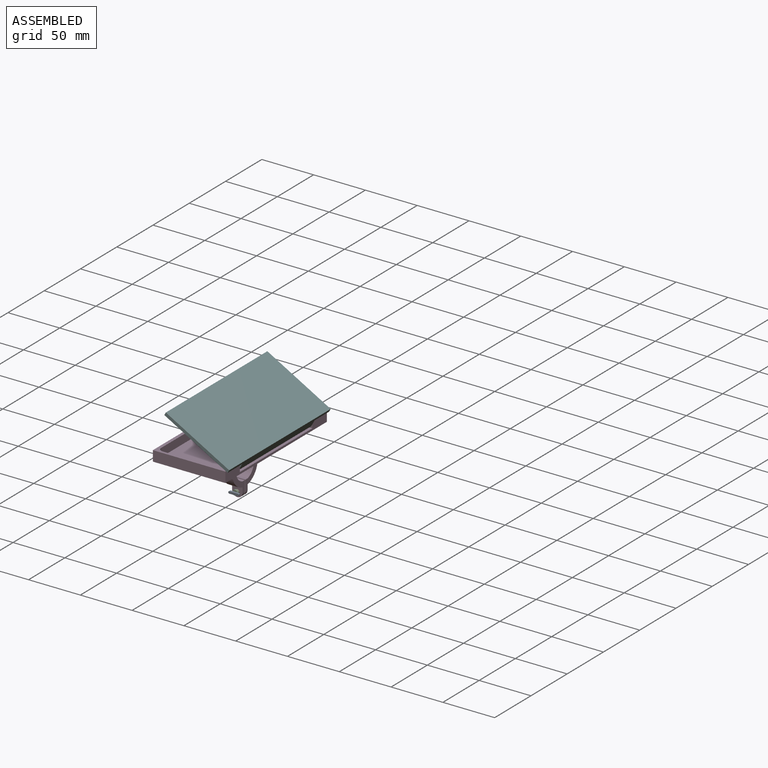
[diagram: assembled view]
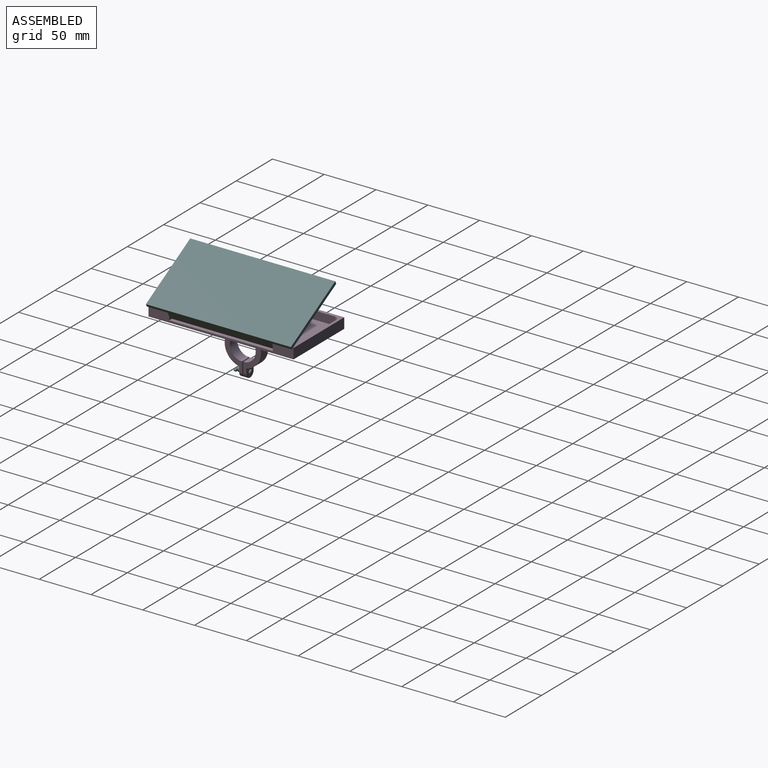
[diagram: assembled view, second angle]
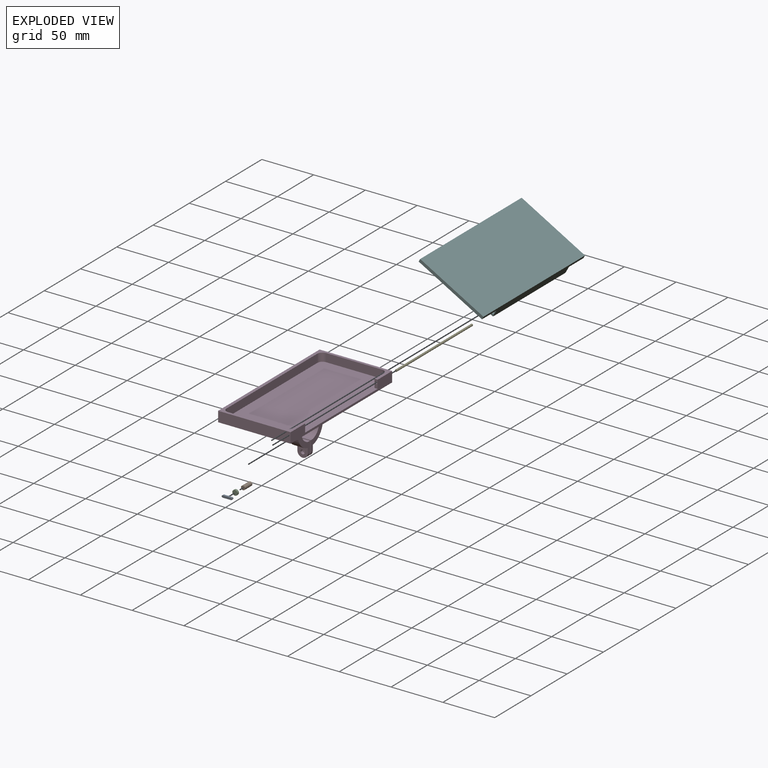
[diagram: exploded view]
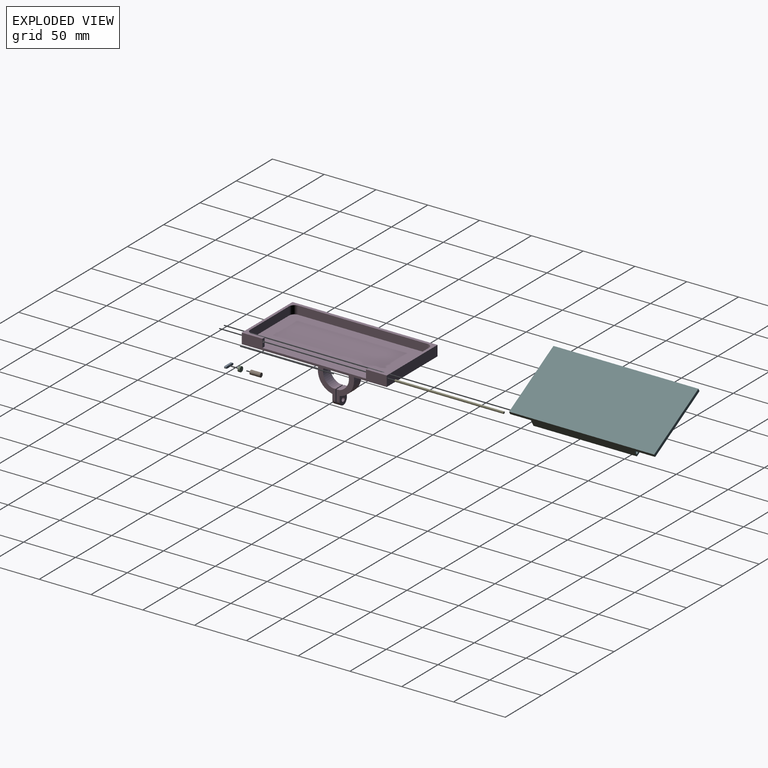
[diagram: exploded view, second angle]
ASSEMBLY  parts=6 mates=5
PART A: 6 faces, bbox 10x2x2 mm
  f0: plane 8x2mm, normal (0,0,1), area 16mm2, adj f2,f3,f4,f5
  f1: plane 8x2mm, normal (0,0,-1), area 16mm2, adj f2,f3,f4,f5
  f2: plane 10x2mm, normal (0,1,0), area 19.1mm2, adj f0,f1,f4,f5
  f3: plane 10x2mm, normal (0,-1,0), area 19.1mm2, adj f0,f1,f4,f5
  f4: cylinder r=1mm len=2mm, axis (0,-1,0), area 6.3mm2, adj f0,f1,f2,f3
  f5: cylinder r=1mm len=2mm, axis (0,-1,0), area 6.3mm2, adj f0,f1,f2,f3
PART B: 3 faces, bbox 4x10x4 mm
  f0: cylinder r=2mm len=10mm, axis (0,-1,0), area 125.7mm2, adj f1,f2
  f1: plane 4x4mm, normal (0,1,0), area 12.6mm2, adj f0
  f2: plane 4x4mm, normal (0,-1,0), area 12.6mm2, adj f0
PART C: 3 faces, bbox 5x2x5 mm
  f0: cylinder r=2.5mm len=5mm, axis (0,-1,0), area 31.4mm2, adj f1,f2
  f1: plane 5x5mm, normal (0,1,0), area 19.6mm2, adj f0
  f2: plane 5x5mm, normal (0,-1,0), area 19.6mm2, adj f0
PART D: 42 faces, bbox 70x140x57 mm
  f0: cylinder r=17.5mm len=32.15mm, axis (-1,0,0), area 419.8mm2, adj f1,f25,f27,f31
  f1: plane 37x35mm, normal (1,0,0), area 465.4mm2, adj f0,f2,f25,f26,f28,f29,f30,f31
  f2: cylinder r=12.5mm len=25mm, axis (1,0,0), area 714.4mm2, adj f1,f27,f28,f32
  f3: plane 140x70mm, normal (0,0,1), area 881.5mm2, adj f4,f5,f6,f7,f8,f10,f11,f12
  f4: plane 12.5x8mm, normal (-1,0,0), area 100mm2, adj f3,f14,f18,f19
  f5: plane 140x10mm, normal (1,0,0), area 600mm2, adj f3,f6,f8,f9,f14,f19,f20
  f6: plane 70x10mm, normal (0,1,0), area 700mm2, adj f3,f5,f7,f9
  f7: plane 140x10mm, normal (-1,0,0), area 1400mm2, adj f3,f6,f8,f9
  f8: plane 70x10mm, normal (0,-1,0), area 700mm2, adj f3,f5,f7,f9
  f9: plane 140x70mm, normal (0,0,-1), area 8600mm2, adj f5,f6,f7,f8,f21,f22,f23,f24
  f10: plane 54x8mm, normal (0,-1,0), area 432mm2, adj f3,f14,f15,f18
  f11: plane 125x8mm, normal (1,0,0), area 1000mm2, adj f3,f14,f15,f16
  f12: plane 54x8mm, normal (0,1,0), area 432mm2, adj f3,f14,f16,f17
  f13: plane 12.5x8mm, normal (-1,0,0), area 100mm2, adj f3,f14,f17,f20
  f14: plane 135x67mm, normal (0,0,1), area 8918.5mm2, adj f4,f5,f10,f11,f12,f13,f15,f16
  f15: cylinder r=5mm len=8mm, axis (0,0,1), area 62.8mm2, adj f3,f10,f11,f14
  f16: cylinder r=5mm len=8mm, axis (0,0,-1), area 62.8mm2, adj f3,f11,f12,f14
  f17: cylinder r=5mm len=8mm, axis (0,0,1), area 62.8mm2, adj f3,f12,f13,f14
  f18: cylinder r=5mm len=8mm, axis (0,0,-1), area 62.8mm2, adj f3,f4,f10,f14
  f19: plane 8x3mm, normal (0,-1,0), area 20.9mm2, adj f3,f4,f5,f14,f38
  f20: plane 8x3mm, normal (0,1,0), area 20.9mm2, adj f3,f5,f13,f14,f40
  f21: plane 30x5mm, normal (0,-1,0), area 150mm2, adj f9,f22,f24,f25
  f22: plane 40x5mm, normal (-1,0,0), area 200mm2, adj f9,f21,f23,f25
  f23: plane 30x5mm, normal (0,1,0), area 150mm2, adj f9,f22,f24,f25
  f24: plane 40x5mm, normal (1,0,0), area 200mm2, adj f9,f21,f23,f25
  f25: plane 40x30mm, normal (0,0,-1), area 1019.7mm2, adj f0,f1,f21,f22,f23,f24,f26,f27
  f26: cylinder r=17.5mm len=32.15mm, axis (-1,0,0), area 419.8mm2, adj f1,f25,f27,f30
  f27: plane 37x35mm, normal (-1,0,0), area 465.4mm2, adj f0,f2,f25,f26,f28,f29,f30,f31
  f28: plane 10x3mm, normal (0,0,1), area 30mm2, adj f1,f2,f27,f29
  f29: plane 15x10mm, normal (0,-1,0), area 126.7mm2, adj f1,f27,f28,f35,f37
  f30: plane 10x9.85mm, normal (0,1,0), area 75.2mm2, adj f1,f26,f27,f35,f37
  f31: plane 10x9.85mm, normal (0,-1,0), area 75.2mm2, adj f0,f1,f27,f34,f36
  f32: plane 10x3mm, normal (0,0,1), area 30mm2, adj f1,f2,f27,f33
  f33: plane 15x10mm, normal (0,1,0), area 126.7mm2, adj f1,f27,f32,f34,f36
  f34: cylinder r=5mm len=10mm, axis (0,-1,0), area 47.1mm2, adj f1,f27,f31,f33
  f35: cylinder r=5mm len=10mm, axis (0,-1,0), area 47.1mm2, adj f1,f27,f29,f30
  f36: cylinder r=2mm len=4mm, axis (0,-1,0), area 37.7mm2, adj f31,f33
  f37: cylinder r=2mm len=4mm, axis (0,-1,0), area 37.7mm2, adj f29,f30
  f38: cylinder r=1mm len=5mm, axis (0,-1,0), area 31.4mm2, adj f19,f39
  f39: plane 2x2mm, normal (0,-1,0), area 3.1mm2, adj f38
  f40: cylinder r=1mm len=5mm, axis (0,1,0), area 31.4mm2, adj f20,f41
  f41: plane 2x2mm, normal (0,1,0), area 3.1mm2, adj f40
PART E: 3 faces, bbox 2x105x2 mm
  f0: cylinder r=1mm len=105mm, axis (0,1,0), area 659.7mm2, adj f1,f2
  f1: plane 2x2mm, normal (0,-1,0), area 3.1mm2, adj f0
  f2: plane 2x2mm, normal (0,1,0), area 3.1mm2, adj f0
PART F: 11 faces, bbox 70x140x10 mm
  f0: plane 100x4mm, normal (0,0,-1), area 400mm2, adj f1,f2,f3,f4
  f1: plane 100x7mm, normal (-1,0,0), area 700mm2, adj f0,f3,f4,f6
  f2: plane 140x10mm, normal (1,0,0), area 1120mm2, adj f0,f3,f4,f6,f7,f8,f10
  f3: plane 7x4mm, normal (0,1,0), area 20.9mm2, adj f0,f1,f2,f5,f6
  f4: plane 7x4mm, normal (0,-1,0), area 20.9mm2, adj f0,f1,f2,f5,f6
  f5: cylinder r=1.5mm len=100mm, axis (0,1,0), area 942.5mm2, adj f3,f4
  f6: plane 140x70mm, normal (0,0,-1), area 9400mm2, adj f1,f2,f3,f4,f7,f8,f9
  f7: plane 70x3mm, normal (0,-1,0), area 210mm2, adj f2,f6,f9,f10
  f8: plane 70x3mm, normal (0,1,0), area 210mm2, adj f2,f6,f9,f10
  f9: plane 140x3mm, normal (-1,0,0), area 420mm2, adj f6,f7,f8,f10
  f10: plane 140x70mm, normal (0,0,1), area 9800mm2, adj f2,f7,f8,f9
PLACE A t=(0,69.64,0)mm
PLACE B t=(0,71.64,0)mm
PLACE C t=(0,71.64,0)mm
PLACE D t=(0,70,0)mm
PLACE E t=(0.5,70,-0.04)mm
PLACE F rot(axis=(0,1,0),29.1deg) t=(0.83,70,17.19)mm
MATE slider D.f34 <-> C.f0  axis (0,1,0) through (0,73.5,-42)mm
MATE fastened B.f0 <-> C.f0  axis (0,-1,0) through (0,65.14,-42)mm
MATE revolute F.f5 <-> D.f40  axis (0,1,0) through (33.5,20,7)mm
MATE fastened D.f38 <-> E.f0  axis (0,-1,0) through (33.5,120,7)mm
MATE fastened A.f2 <-> C.f0  axis (0,1,0) through (0,63.14,-42)mm
